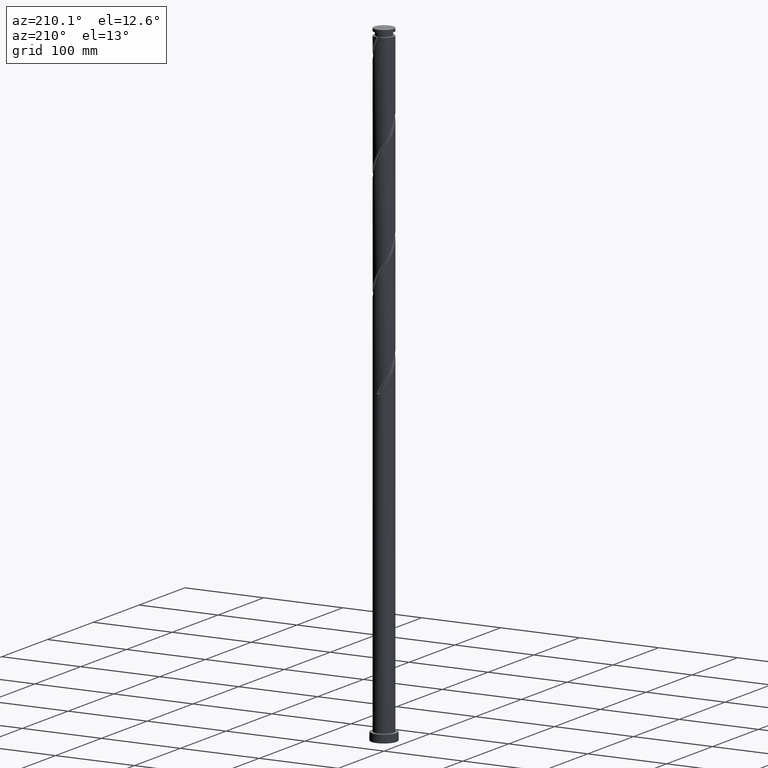
[diagram: clean part render]
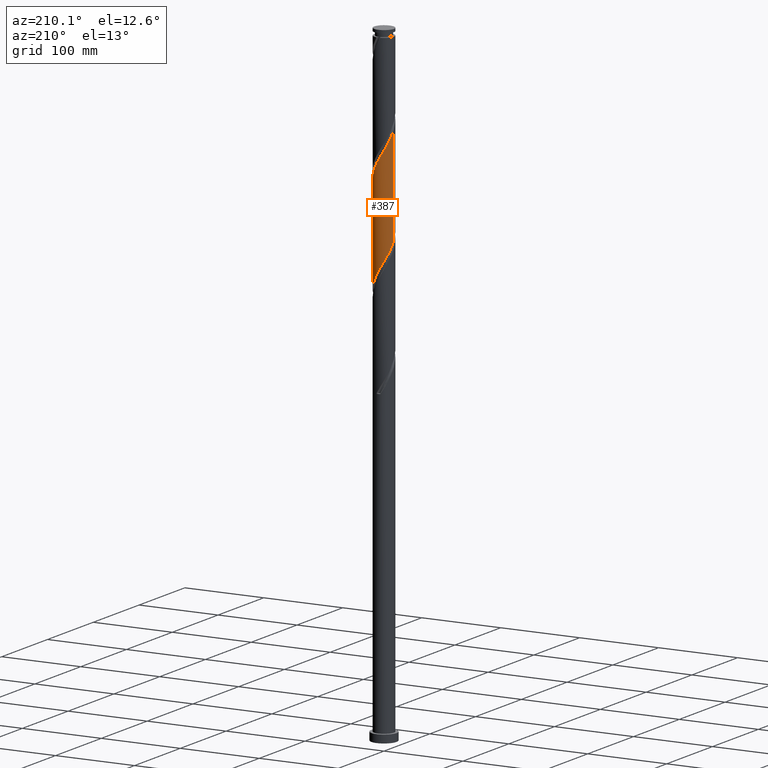
[diagram: same view with one face highlighted and labeled with its STEP entity id]
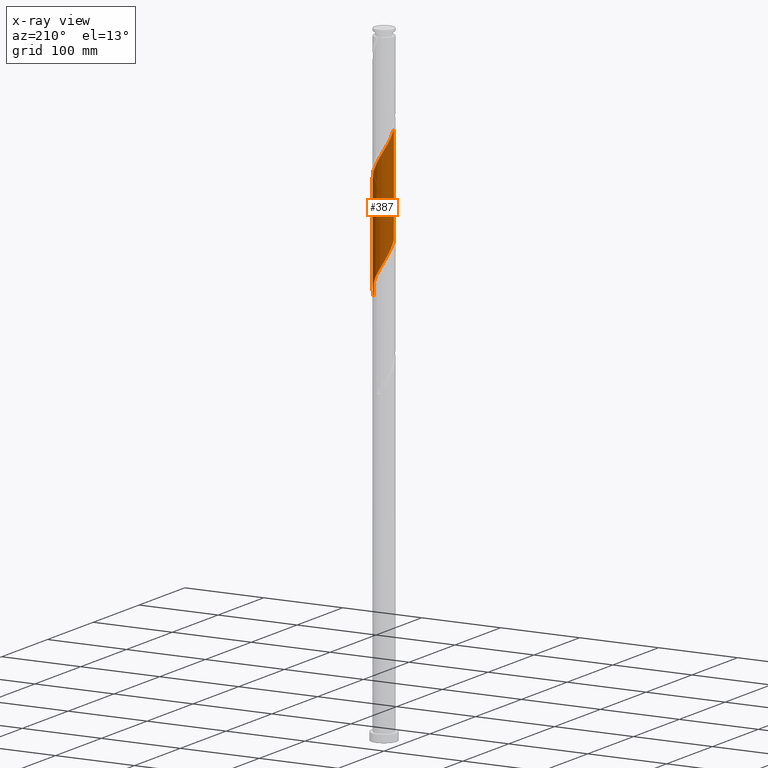
[diagram: x-ray of the same camera — body ghosted, the highlighted face saturated]
A machine part, auxiliary view. The second image highlights one B-rep face of the part: STEP entity #387.
The next image is the same camera in x-ray: the body ghosted, the highlighted face saturated — about 0% of this face is hidden behind the body in this view.
In plain terms, the highlighted cylindrical surface (edge-blend (fillet) strip) has radius 12.5 mm, axis along (-0, -0, -1).
Its self-contained STEP definition (entity closure, byte-faithful):
#3 = CARTESIAN_POINT ( 'NONE',  ( 12.41357356760536668, 1.467375644356201381, 622.9882167825222723 ) ) ;
#17 = CARTESIAN_POINT ( 'NONE',  ( -6.330259180984804779, 10.77858147909816822, 665.0934799404171827 ) ) ;
#32 = CARTESIAN_POINT ( 'NONE',  ( -6.488771576365718552, 10.73399658402358092, 540.5320764316453506 ) ) ;
#88 = CARTESIAN_POINT ( 'NONE',  ( -12.00274651105806001, 3.490569608428349291, 556.3215501158558709 ) ) ;
#145 = CARTESIAN_POINT ( 'NONE',  ( -12.43641761389966227, 1.630446616350346600, 684.3917255544523641 ) ) ;
#156 = CARTESIAN_POINT ( 'NONE',  ( -12.50000000000001421, -8.360079031931281511E-15, 687.1573372133124167 ) ) ;
#165 = CARTESIAN_POINT ( 'NONE',  ( 3.642692230415432775, 11.95745764426834334, 647.5496202912943318 ) ) ;
#168 = DIRECTION ( 'NONE',  ( -0.000000000000000000, -0.000000000000000000, -1.000000000000000000 ) ) ;
#171 = AXIS2_PLACEMENT_3D ( 'NONE', #1630, #1477, #385 ) ;
#175 = CARTESIAN_POINT ( 'NONE',  ( -10.16149603392872436, 7.353015543879450888, 673.8654097649784944 ) ) ;
#190 = CARTESIAN_POINT ( 'NONE',  ( 12.50000000000000000, 1.530808498934191127E-15, 800.0000000000000000 ) ) ;
#237 = CARTESIAN_POINT ( 'NONE',  ( -12.49999999999999645, -3.532133390990989560E-14, 562.3278682815570164 ) ) ;
#241 = VERTEX_POINT ( 'NONE', #1298 ) ;
#261 = VECTOR ( 'NONE', #454, 1000.000000000000000 ) ;
#262 = CARTESIAN_POINT ( 'NONE',  ( -11.26451581851405770, 5.418549932818424786, 552.8127781860312098 ) ) ;
#273 = CARTESIAN_POINT ( 'NONE',  ( -10.81552197002327631, 6.351954325404532753, 551.0583922211189929 ) ) ;
#275 = CARTESIAN_POINT ( 'NONE',  ( 11.99843839451383509, 3.655176511351786228, 501.9355852035750445 ) ) ;
#288 = CARTESIAN_POINT ( 'NONE',  ( 8.018018898992890442, 9.589649260290643795, 514.2162869579610742 ) ) ;
#289 = CARTESIAN_POINT ( 'NONE',  ( 12.43641761389964628, 1.630446616350339051, 498.4268132737504970 ) ) ;
#312 = EDGE_CURVE ( 'NONE', #241, #925, #601, .T. ) ;
#332 = CARTESIAN_POINT ( 'NONE',  ( 8.167030959368803522, 9.519582162300693540, 638.7776904667327926 ) ) ;
#339 = ORIENTED_EDGE ( 'NONE', *, *, #1517, .T. ) ;
#344 = CARTESIAN_POINT ( 'NONE',  ( 10.81552197002329763, 6.351954325404538082, 631.7601466070840388 ) ) ;
#355 = CARTESIAN_POINT ( 'NONE',  ( -5.437120455758652326, 11.30312170976022479, 663.3390939755048521 ) ) ;
#364 = CARTESIAN_POINT ( 'NONE',  ( -3.502532532788455555, 12.04388247588129524, 659.8303220456805320 ) ) ;
#385 = DIRECTION ( 'NONE',  ( -1.000000000000000000, 0.000000000000000000, 0.000000000000000000 ) ) ;
#387 = ADVANCED_FACE ( 'NONE', ( #1744 ), #1961, .T. ) ;
#454 = DIRECTION ( 'NONE',  ( -0.000000000000000000, -0.000000000000000000, -1.000000000000000000 ) ) ;
#497 = ORIENTED_EDGE ( 'NONE', *, *, #2120, .F. ) ;
#506 = CARTESIAN_POINT ( 'NONE',  ( 0.4372590323955704017, 12.49234984054595188, 528.2513746772593777 ) ) ;
#523 = CARTESIAN_POINT ( 'NONE',  ( 1.624877814529951836, 12.39394094256741319, 651.0583922211191066 ) ) ;
#526 = CARTESIAN_POINT ( 'NONE',  ( -3.642692230415416343, 11.95745764426833446, 535.2689185369085862 ) ) ;
#546 = CARTESIAN_POINT ( 'NONE',  ( 10.21901849884217839, 7.198726340146690994, 633.5145325719960283 ) ) ;
#593 = CARTESIAN_POINT ( 'NONE',  ( -8.894772993514918014, 8.782540258594758953, 545.7952343263823423 ) ) ;
#601 =( BOUNDED_CURVE ( )  B_SPLINE_CURVE ( 2, ( #237, #2264, #1175, #1701, #88, #641, #262, #273, #1015, #1507, #593, #2193, #1122, #32, #1264, #606, #526, #907, #2324, #2361, #506, #1629, #1607, #1075, #2179, #1288, #1155, #1734, #288, #1041, #866, #2020, #1108, #1899, #1065, #275, #658, #289, #1387, #673, #1748 ),
 .UNSPECIFIED., .F., .F. ) 
 B_SPLINE_CURVE_WITH_KNOTS ( ( 3, 2, 2, 2, 2, 2, 2, 2, 2, 2, 2, 2, 2, 2, 2, 2, 2, 2, 2, 2, 3 ),
 ( 0.6795295809515954355, 0.6842105263157894912, 0.6907894736842105088, 0.6973684210526315264, 0.7039473684210526550, 0.7105263157894736725, 0.7171052631578946901, 0.7236842105263158187, 0.7302631578947368363, 0.7368421052631578538, 0.7434210526315789824, 0.7500000000000000000, 0.7565789473684210176, 0.7631578947368421462, 0.7697368421052631637, 0.7763157894736841813, 0.7828947368421053099, 0.7894736842105263275, 0.7960526315789473450, 0.8026315789473684736, 0.8045295809515953245 ),
 .UNSPECIFIED. ) 
 CURVE ( )  GEOMETRIC_REPRESENTATION_ITEM ( )  RATIONAL_B_SPLINE_CURVE ( ( 0.9078162034606067632, 0.9068816855934138665, 0.9090909090909354839, 0.9059859027333625470, 0.9090909090909354839, 0.9059859027333625470, 0.9090909090909354839, 0.9059859027333625470, 0.9090909090909354839, 0.9059859027333625470, 0.9090909090909354839, 0.9059859027333625470, 0.9090909090909354839, 0.9059859027333625470, 0.9090909090909354839, 0.9059859027333625470, 0.9090909090909354839, 0.9059859027333625470, 0.9090909090909354839, 0.9059859027333625470, 0.9090909090909354839, 0.9059859027333625470, 0.9090909090909354839, 0.9059859027333625470, 0.9090909090909354839, 0.9059859027333625470, 0.9090909090909354839, 0.9059859027333625470, 0.9090909090909354839, 0.9059859027333625470, 0.9090909090909354839, 0.9059859027333625470, 0.9090909090909354839, 0.9059859027333625470, 0.9090909090909354839, 0.9059859027333625470, 0.9090909090909354839, 0.9059859027333625470, 0.9090909090909354839, 0.9081951262308842754, 0.9078162034606067632 ) ) 
 REPRESENTATION_ITEM ( '' )  );
#606 = CARTESIAN_POINT ( 'NONE',  ( -4.633515419724471229, 11.65561556037505220, 537.0233045018206894 ) ) ;
#641 = CARTESIAN_POINT ( 'NONE',  ( -11.71350966700483731, 4.485145540232317707, 554.5671641509434266 ) ) ;
#658 = CARTESIAN_POINT ( 'NONE',  ( 12.21742800420674335, 2.642811563851068080, 500.1811992386628845 ) ) ;
#673 = CARTESIAN_POINT ( 'NONE',  ( 12.49999999999999645, 0.2980916780646282183, 496.1675246333304017 ) ) ;
#717 = CARTESIAN_POINT ( 'NONE',  ( -7.223397906210958119, 10.25404124843610632, 666.8478659053292859 ) ) ;
#726 = CARTESIAN_POINT ( 'NONE',  ( -12.50000000000001066, 0.2980916780646595265, 686.6510141948722321 ) ) ;
#728 = VERTEX_POINT ( 'NONE', #1265 ) ;
#730 = LINE ( 'NONE', #190, #2177 ) ;
#736 = CARTESIAN_POINT ( 'NONE',  ( -12.21742800420675756, 2.642811563851073853, 682.6373395895400336 ) ) ;
#836 = LINE ( 'NONE', #2131, #261 ) ;
#866 = CARTESIAN_POINT ( 'NONE',  ( 9.487067962851766012, 8.139136408012317858, 510.7075150281364699 ) ) ;
#904 = CARTESIAN_POINT ( 'NONE',  ( -4.469826494273553052, 11.67350209282075824, 661.5847080105925215 ) ) ;
#907 = CARTESIAN_POINT ( 'NONE',  ( -2.651869041106362346, 12.25929972816160607, 533.5145325719961420 ) ) ;
#925 = VERTEX_POINT ( 'NONE', #1101 ) ;
#1015 = CARTESIAN_POINT ( 'NONE',  ( -10.21901849884216240, 7.198726340146682112, 549.3040062562067760 ) ) ;
#1041 = CARTESIAN_POINT ( 'NONE',  ( 8.812639891774814771, 8.925257272145200815, 512.4619009930488573 ) ) ;
#1061 = CARTESIAN_POINT ( 'NONE',  ( -11.23317305332023963, 5.580202719457611593, 677.3741816948030419 ) ) ;
#1065 = CARTESIAN_POINT ( 'NONE',  ( 11.61580572391703114, 4.617689615404693804, 503.6899711684873751 ) ) ;
#1072 = CARTESIAN_POINT ( 'NONE',  ( -8.018018898992890442, 9.589649260290663335, 668.6022518702418438 ) ) ;
#1075 = CARTESIAN_POINT ( 'NONE',  ( 3.502532532788457775, 12.04388247588127570, 522.9882167825223860 ) ) ;
#1094 = CARTESIAN_POINT ( 'NONE',  ( 12.50000000000001599, 0.7362330219178971902, 621.7411976608312898 ) ) ;
#1101 = CARTESIAN_POINT ( 'NONE',  ( 12.50000000000000000, -4.478613767106074545E-15, 495.6612016148903308 ) ) ;
#1104 = CARTESIAN_POINT ( 'NONE',  ( 4.633515419724479223, 11.65561556037507174, 645.7952343263820012 ) ) ;
#1108 = CARTESIAN_POINT ( 'NONE',  ( 10.69733454362447134, 6.466609131668515253, 507.1987430983118657 ) ) ;
#1122 = CARTESIAN_POINT ( 'NONE',  ( -7.327901267867254376, 10.12678937316213101, 542.2864623965576811 ) ) ;
#1155 = CARTESIAN_POINT ( 'NONE',  ( 6.330259180984803002, 10.77858147909814868, 517.7250588877855080 ) ) ;
#1175 = CARTESIAN_POINT ( 'NONE',  ( -12.41357356760535069, 1.467375644356207154, 559.8303220456805320 ) ) ;
#1233 = EDGE_LOOP ( 'NONE', ( #497, #339, #1502, #2214 ) ) ;
#1264 = CARTESIAN_POINT ( 'NONE',  ( -5.561143498045096223, 11.19480607219932011, 538.7776904667329063 ) ) ;
#1265 = CARTESIAN_POINT ( 'NONE',  ( -12.50000000000001421, -8.360079031931281511E-15, 687.1573372133124167 ) ) ;
#1269 = CARTESIAN_POINT ( 'NONE',  ( 12.29198335511129514, 2.495993676624377766, 624.7426027474346029 ) ) ;
#1281 = CARTESIAN_POINT ( 'NONE',  ( -0.4372590323955601876, 12.49234984054596787, 654.5671641509435403 ) ) ;
#1288 = CARTESIAN_POINT ( 'NONE',  ( 5.437120455758646997, 11.30312170976020347, 519.4794448526978385 ) ) ;
#1292 = CARTESIAN_POINT ( 'NONE',  ( 11.26451581851407724, 5.418549932818425674, 630.0057606421713672 ) ) ;
#1298 = CARTESIAN_POINT ( 'NONE',  ( -12.49999999999999645, -3.532133390990989560E-14, 562.3278682815570164 ) ) ;
#1387 = CARTESIAN_POINT ( 'NONE',  ( 12.48579069699953159, 0.5958445021311489231, 496.6724273088382233 ) ) ;
#1462 = CARTESIAN_POINT ( 'NONE',  ( 12.00274651105807422, 3.490569608428351067, 626.4969887123469334 ) ) ;
#1477 = DIRECTION ( 'NONE',  ( -0.000000000000000000, -0.000000000000000000, -1.000000000000000000 ) ) ;
#1502 = ORIENTED_EDGE ( 'NONE', *, *, #312, .F. ) ;
#1507 = CARTESIAN_POINT ( 'NONE',  ( -9.622515027661046716, 8.045498354888831471, 547.5496202912944455 ) ) ;
#1517 = EDGE_CURVE ( 'NONE', #1930, #925, #730, .T. ) ;
#1603 = CARTESIAN_POINT ( 'NONE',  ( 0.5978865879535303351, 12.52858215697320077, 652.8127781860309824 ) ) ;
#1607 = CARTESIAN_POINT ( 'NONE',  ( 2.487468592766562736, 12.25000000000000000, 524.7426027474348302 ) ) ;
#1616 = CARTESIAN_POINT ( 'NONE',  ( -1.472404652744661924, 12.45611752411873674, 656.3215501158557572 ) ) ;
#1626 = CARTESIAN_POINT ( 'NONE',  ( -8.812639891774825429, 8.925257272145215026, 670.3566378351540607 ) ) ;
#1629 = CARTESIAN_POINT ( 'NONE',  ( 1.472404652744667475, 12.45611752411871898, 526.4969887123469334 ) ) ;
#1630 = CARTESIAN_POINT ( 'NONE',  ( 0.000000000000000000, 0.000000000000000000, 800.0000000000000000 ) ) ;
#1639 = CARTESIAN_POINT ( 'NONE',  ( 8.894772993514934001, 8.782540258594764282, 637.0233045018206894 ) ) ;
#1651 = CARTESIAN_POINT ( 'NONE',  ( 12.50000000000001421, -6.419346399518662645E-15, 620.4906705466459016 ) ) ;
#1701 = CARTESIAN_POINT ( 'NONE',  ( -12.29198335511128093, 2.495993676624379098, 558.0759360807680878 ) ) ;
#1734 = CARTESIAN_POINT ( 'NONE',  ( 7.223397906210956343, 10.25404124843609033, 515.9706729228734048 ) ) ;
#1744 = FACE_OUTER_BOUND ( 'NONE', #1233, .T. ) ;
#1748 = CARTESIAN_POINT ( 'NONE',  ( 12.50000000000000000, -4.478613767106074545E-15, 495.6612016148903308 ) ) ;
#1783 = CARTESIAN_POINT ( 'NONE',  ( 5.561143498045108657, 11.19480607219933255, 644.0408483614698980 ) ) ;
#1794 = CARTESIAN_POINT ( 'NONE',  ( -11.99843839451384930, 3.655176511351802660, 680.8829536246277030 ) ) ;
#1805 = CARTESIAN_POINT ( 'NONE',  ( 7.327901267867273027, 10.12678937316213990, 640.5320764316451232 ) ) ;
#1814 = CARTESIAN_POINT ( 'NONE',  ( -12.48579069699954758, 0.5958445021311573608, 686.1461115193644673 ) ) ;
#1899 = CARTESIAN_POINT ( 'NONE',  ( 11.23317305332022187, 5.580202719457600047, 505.4443571333995351 ) ) ;
#1930 = VERTEX_POINT ( 'NONE', #1939 ) ;
#1934 = EDGE_CURVE ( 'NONE', #728, #241, #836, .T. ) ;
#1939 = CARTESIAN_POINT ( 'NONE',  ( 12.50000000000001421, -6.419346399518662645E-15, 620.4906705466459016 ) ) ;
#1961 = CYLINDRICAL_SURFACE ( 'NONE', #171, 12.50000000000000000 ) ;
#1981 = CARTESIAN_POINT ( 'NONE',  ( 11.71350966700485685, 4.485145540232315042, 628.2513746772593777 ) ) ;
#2015 = CARTESIAN_POINT ( 'NONE',  ( -9.487067962851774894, 8.139136408012332069, 672.1110238000662775 ) ) ;
#2020 = CARTESIAN_POINT ( 'NONE',  ( 10.16149603392871548, 7.353015543879434013, 508.9531290632240825 ) ) ;
#2120 = EDGE_CURVE ( 'NONE', #1930, #728, #2310, .T. ) ;
#2131 = CARTESIAN_POINT ( 'NONE',  ( -12.50000000000000000, 0.000000000000000000, 800.0000000000000000 ) ) ;
#2175 = CARTESIAN_POINT ( 'NONE',  ( -2.487468592766559183, 12.25000000000001599, 658.0759360807679741 ) ) ;
#2177 = VECTOR ( 'NONE', #168, 1000.000000000000000 ) ;
#2179 = CARTESIAN_POINT ( 'NONE',  ( 4.469826494273558382, 11.67350209282073870, 521.2338308176100554 ) ) ;
#2187 = CARTESIAN_POINT ( 'NONE',  ( 6.488771576365735427, 10.73399658402359158, 642.2864623965574538 ) ) ;
#2193 = CARTESIAN_POINT ( 'NONE',  ( -8.167030959368789311, 9.519582162300682882, 544.0408483614697843 ) ) ;
#2198 = CARTESIAN_POINT ( 'NONE',  ( 9.622515027661066256, 8.045498354888833248, 635.2689185369082452 ) ) ;
#2214 = ORIENTED_EDGE ( 'NONE', *, *, #1934, .F. ) ;
#2264 = CARTESIAN_POINT ( 'NONE',  ( -12.50000000000000000, 0.7362330219179058499, 561.0773411673716282 ) ) ;
#2310 =( BOUNDED_CURVE ( )  B_SPLINE_CURVE ( 2, ( #1651, #1094, #3, #1269, #1462, #1981, #1292, #344, #546, #2198, #1639, #332, #1805, #2187, #1783, #1104, #165, #2347, #523, #1603, #1281, #1616, #2175, #364, #904, #355, #17, #717, #1072, #1626, #2015, #175, #2336, #1061, #2357, #1794, #736, #145, #1814, #726, #156 ),
 .UNSPECIFIED., .F., .T. ) 
 B_SPLINE_CURVE_WITH_KNOTS ( ( 3, 2, 2, 2, 2, 2, 2, 2, 2, 2, 2, 2, 2, 2, 2, 2, 2, 2, 2, 2, 3 ),
 ( 0.4295295809515954355, 0.4342105263157894912, 0.4407894736842105088, 0.4473684210526315264, 0.4539473684210526550, 0.4605263157894736725, 0.4671052631578946901, 0.4736842105263158187, 0.4802631578947368363, 0.4868421052631578538, 0.4934210526315789824, 0.5000000000000000000, 0.5065789473684210176, 0.5131578947368420351, 0.5197368421052631637, 0.5263157894736842923, 0.5328947368421053099, 0.5394736842105263275, 0.5460526315789473450, 0.5526315789473683626, 0.5545295809515951024 ),
 .UNSPECIFIED. ) 
 CURVE ( )  GEOMETRIC_REPRESENTATION_ITEM ( )  RATIONAL_B_SPLINE_CURVE ( ( 0.9078162034606127584, 0.9068816855934198617, 0.9090909090909415902, 0.9059859027333685422, 0.9090909090909415902, 0.9059859027333685422, 0.9090909090909415902, 0.9059859027333685422, 0.9090909090909415902, 0.9059859027333685422, 0.9090909090909415902, 0.9059859027333685422, 0.9090909090909415902, 0.9059859027333685422, 0.9090909090909415902, 0.9059859027333685422, 0.9090909090909415902, 0.9059859027333685422, 0.9090909090909415902, 0.9059859027333685422, 0.9090909090909415902, 0.9059859027333685422, 0.9090909090909415902, 0.9059859027333685422, 0.9090909090909415902, 0.9059859027333685422, 0.9090909090909415902, 0.9059859027333685422, 0.9090909090909415902, 0.9059859027333685422, 0.9090909090909415902, 0.9059859027333685422, 0.9090909090909415902, 0.9059859027333685422, 0.9090909090909415902, 0.9059859027333685422, 0.9090909090909415902, 0.9059859027333685422, 0.9090909090909415902, 0.9081951262308903816, 0.9078162034606127584 ) ) 
 REPRESENTATION_ITEM ( '' )  );
#2324 = CARTESIAN_POINT ( 'NONE',  ( -1.624877814529944731, 12.39394094256739898, 531.7601466070838114 ) ) ;
#2336 = CARTESIAN_POINT ( 'NONE',  ( -10.69733454362448022, 6.466609131668532129, 675.6197957298909387 ) ) ;
#2347 = CARTESIAN_POINT ( 'NONE',  ( 2.651869041106374336, 12.25929972816162028, 649.3040062562067760 ) ) ;
#2357 = CARTESIAN_POINT ( 'NONE',  ( -11.61580572391704358, 4.617689615404707126, 679.1285676597155998 ) ) ;
#2361 = CARTESIAN_POINT ( 'NONE',  ( -0.5978865879535263383, 12.52858215697318300, 530.0057606421715946 ) ) ;